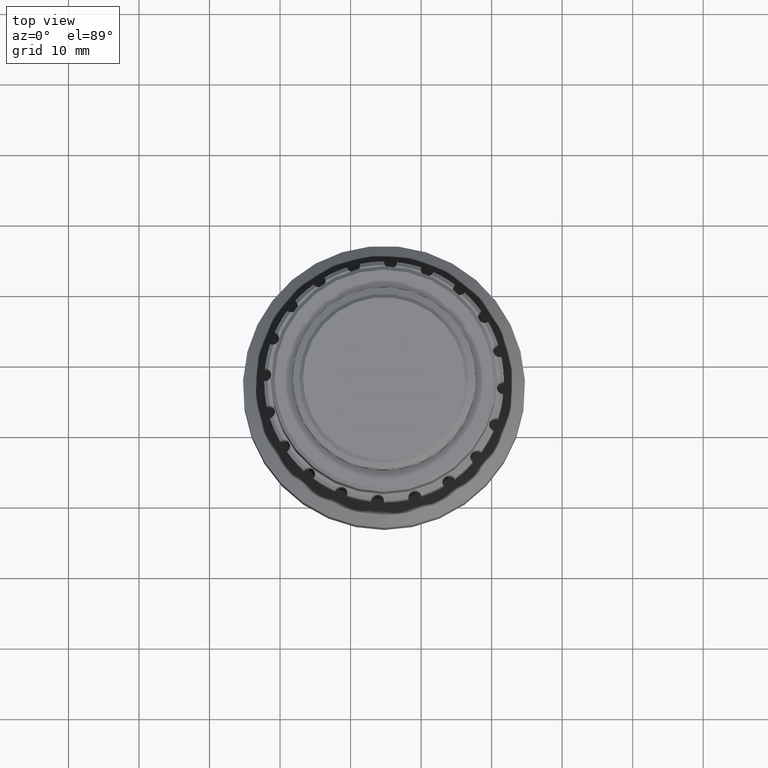
[diagram: clean part render]
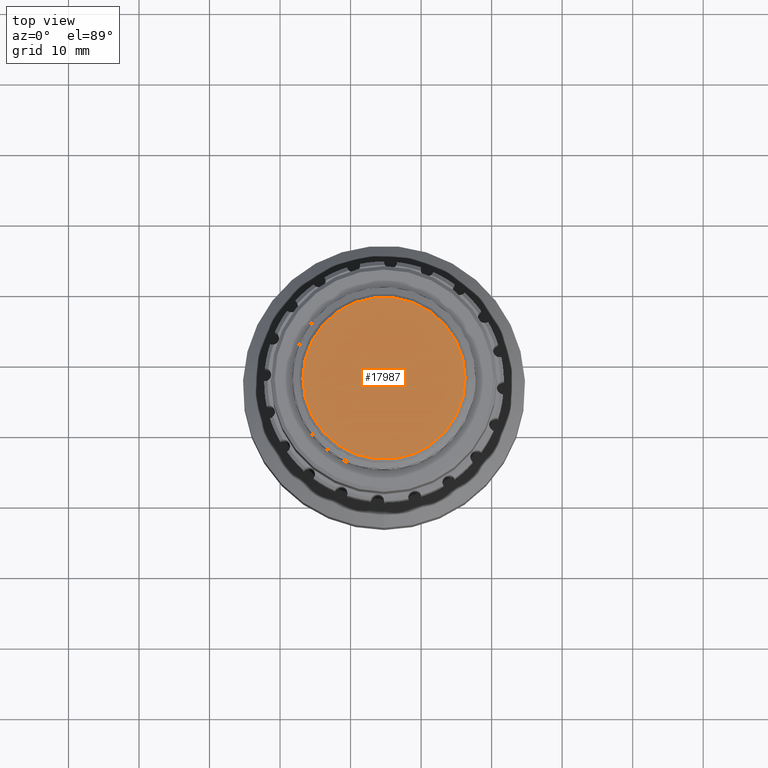
[diagram: same view with one face highlighted and labeled with its STEP entity id]
A machine part, top view. The second image highlights one B-rep face of the part: STEP entity #17987.
In plain terms, the highlighted planar face has unit normal (0, 0, 1).
Its self-contained STEP definition (entity closure, byte-faithful):
#2677 = AXIS2_PLACEMENT_3D ( 'NONE', #17787, #11452, #17581 ) ;
#3182 = EDGE_LOOP ( 'NONE', ( #13699 ) ) ;
#4512 = DIRECTION ( 'NONE',  ( 0.000000000000000000, 0.000000000000000000, 1.000000000000000000 ) ) ;
#7798 = AXIS2_PLACEMENT_3D ( 'NONE', #14957, #4512, #17981 ) ;
#8338 = PLANE ( 'NONE',  #2677 ) ;
#10057 = CIRCLE ( 'NONE', #7798, 11.49999999999999645 ) ;
#11452 = DIRECTION ( 'NONE',  ( 0.000000000000000000, 0.000000000000000000, 1.000000000000000000 ) ) ;
#11751 = FACE_OUTER_BOUND ( 'NONE', #3182, .T. ) ;
#12243 = CARTESIAN_POINT ( 'NONE',  ( -93.76140816622343266, -83.12817323313825568, 33.00000000000000000 ) ) ;
#13699 = ORIENTED_EDGE ( 'NONE', *, *, #18029, .T. ) ;
#14957 = CARTESIAN_POINT ( 'NONE',  ( -105.2614081662234184, -83.12817323313825568, 33.00000000000000000 ) ) ;
#17172 = VERTEX_POINT ( 'NONE', #12243 ) ;
#17581 = DIRECTION ( 'NONE',  ( 1.000000000000000000, 0.000000000000000000, -0.000000000000000000 ) ) ;
#17787 = CARTESIAN_POINT ( 'NONE',  ( -105.2614081662234184, -83.12817323313825568, 33.00000000000000000 ) ) ;
#17981 = DIRECTION ( 'NONE',  ( 1.000000000000000000, 0.000000000000000000, 0.000000000000000000 ) ) ;
#17987 = ADVANCED_FACE ( 'NONE', ( #11751 ), #8338, .T. ) ;
#18029 = EDGE_CURVE ( 'NONE', #17172, #17172, #10057, .T. ) ;